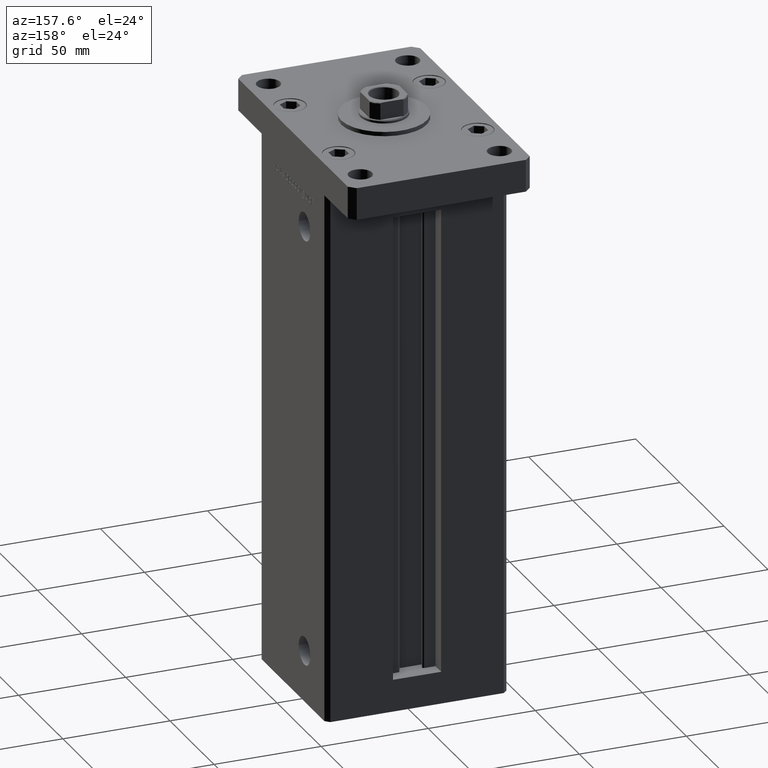
[diagram: clean part render]
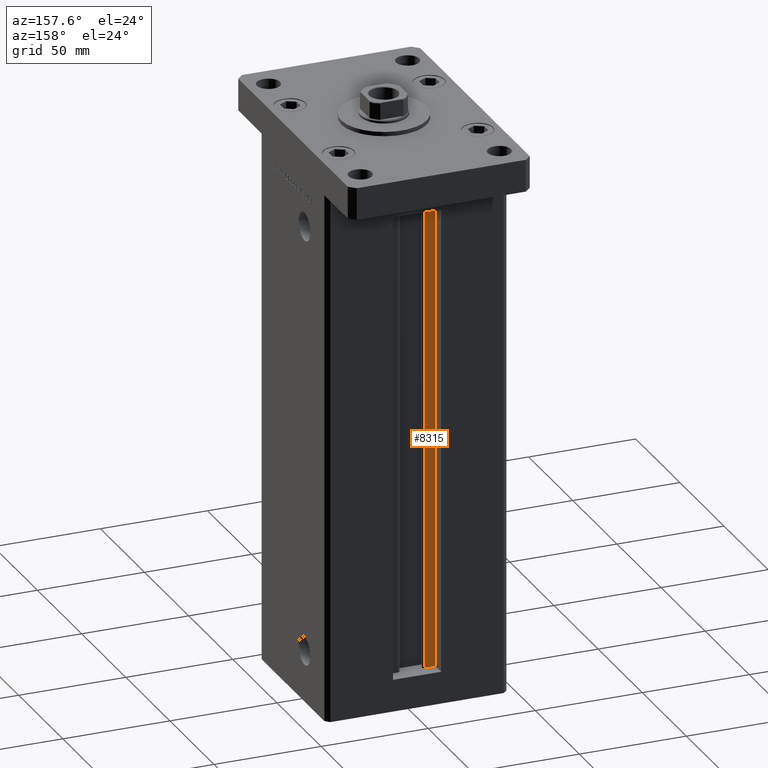
[diagram: same view with one face highlighted and labeled with its STEP entity id]
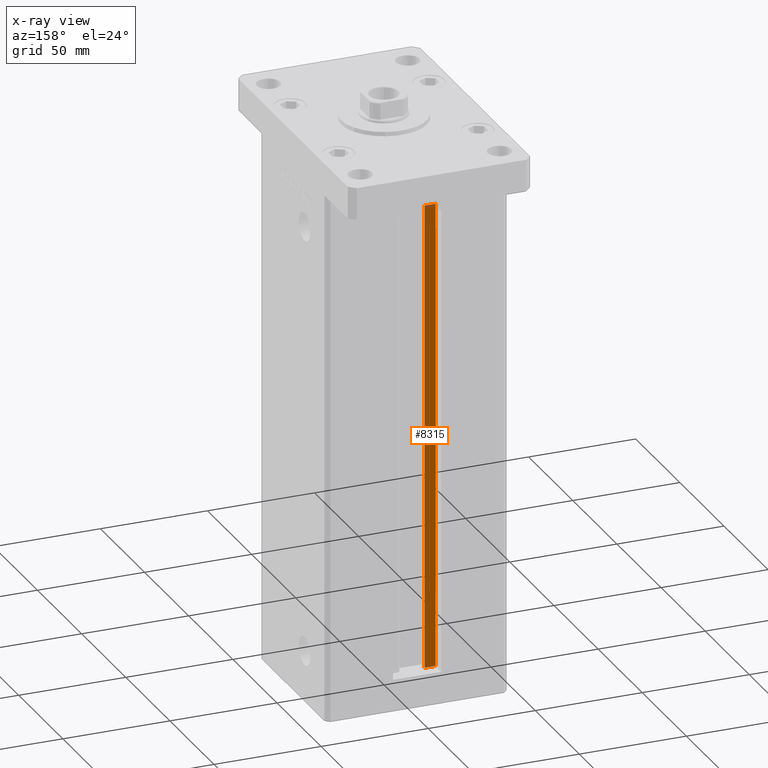
[diagram: x-ray of the same camera — body ghosted, the highlighted face saturated]
A machine part, auxiliary view. The second image highlights one B-rep face of the part: STEP entity #8315.
The next image is the same camera in x-ray: the body ghosted, the highlighted face saturated — about 1% of this face is hidden behind the body in this view.
In plain terms, the highlighted planar face has unit normal (0, -1, 0).
Its self-contained STEP definition (entity closure, byte-faithful):
#1399 = CARTESIAN_POINT ( 'NONE',  ( -6.183333333333999704, 30.99999999999999289, 0.000000000000000000 ) ) ;
#3523 = VERTEX_POINT ( 'NONE', #28618 ) ;
#4418 = EDGE_CURVE ( 'NONE', #42924, #3523, #47213, .T. ) ;
#5596 = EDGE_CURVE ( 'NONE', #3523, #37501, #15659, .T. ) ;
#8002 = ORIENTED_EDGE ( 'NONE', *, *, #4418, .F. ) ;
#8315 = ADVANCED_FACE ( 'NONE', ( #13565 ), #9243, .F. ) ;
#8449 = DIRECTION ( 'NONE',  ( 1.000000000000000000, -0.000000000000000000, -0.000000000000000000 ) ) ;
#9167 = VECTOR ( 'NONE', #40336, 1000.000000000000000 ) ;
#9243 = PLANE ( 'NONE',  #18267 ) ;
#13050 = DIRECTION ( 'NONE',  ( -0.000000000000000000, -0.000000000000000000, 1.000000000000000000 ) ) ;
#13457 = ORIENTED_EDGE ( 'NONE', *, *, #5596, .F. ) ;
#13565 = FACE_OUTER_BOUND ( 'NONE', #50017, .T. ) ;
#15623 = ORIENTED_EDGE ( 'NONE', *, *, #26555, .T. ) ;
#15659 = LINE ( 'NONE', #53081, #19038 ) ;
#17356 = CARTESIAN_POINT ( 'NONE',  ( -6.183333333333999704, 30.99999999999999289, 0.000000000000000000 ) ) ;
#18267 = AXIS2_PLACEMENT_3D ( 'NONE', #17356, #46642, #21160 ) ;
#19038 = VECTOR ( 'NONE', #41683, 1000.000000000000000 ) ;
#19048 = CARTESIAN_POINT ( 'NONE',  ( -11.25000000000000000, 30.99999999999999289, 0.000000000000000000 ) ) ;
#19711 = LINE ( 'NONE', #20490, #9167 ) ;
#20490 = CARTESIAN_POINT ( 'NONE',  ( -11.25000000000000000, 30.99999999999999289, 0.000000000000000000 ) ) ;
#21160 = DIRECTION ( 'NONE',  ( 0.000000000000000000, 0.000000000000000000, -1.000000000000000000 ) ) ;
#22048 = VECTOR ( 'NONE', #8449, 1000.000000000000000 ) ;
#24011 = EDGE_CURVE ( 'NONE', #41050, #42924, #38530, .T. ) ;
#26555 = EDGE_CURVE ( 'NONE', #41050, #37501, #19711, .T. ) ;
#28618 = CARTESIAN_POINT ( 'NONE',  ( -6.183333333333999704, 30.99999999999999289, 218.5000000000000000 ) ) ;
#30526 = ORIENTED_EDGE ( 'NONE', *, *, #24011, .F. ) ;
#31104 = VECTOR ( 'NONE', #13050, 1000.000000000000000 ) ;
#36069 = CARTESIAN_POINT ( 'NONE',  ( -6.183333333333999704, 30.99999999999999289, 0.000000000000000000 ) ) ;
#37501 = VERTEX_POINT ( 'NONE', #48240 ) ;
#38530 = LINE ( 'NONE', #1399, #22048 ) ;
#40336 = DIRECTION ( 'NONE',  ( -0.000000000000000000, -0.000000000000000000, 1.000000000000000000 ) ) ;
#41050 = VERTEX_POINT ( 'NONE', #19048 ) ;
#41683 = DIRECTION ( 'NONE',  ( -1.000000000000000000, 0.000000000000000000, 0.000000000000000000 ) ) ;
#42924 = VERTEX_POINT ( 'NONE', #36069 ) ;
#46642 = DIRECTION ( 'NONE',  ( 0.000000000000000000, -1.000000000000000000, -0.000000000000000000 ) ) ;
#46937 = CARTESIAN_POINT ( 'NONE',  ( -6.183333333333999704, 30.99999999999999289, 0.000000000000000000 ) ) ;
#47213 = LINE ( 'NONE', #46937, #31104 ) ;
#48240 = CARTESIAN_POINT ( 'NONE',  ( -11.25000000000000000, 30.99999999999999289, 218.5000000000000000 ) ) ;
#50017 = EDGE_LOOP ( 'NONE', ( #8002, #30526, #15623, #13457 ) ) ;
#53081 = CARTESIAN_POINT ( 'NONE',  ( 0.000000000000000000, 30.99999999999999289, 218.5000000000000000 ) ) ;